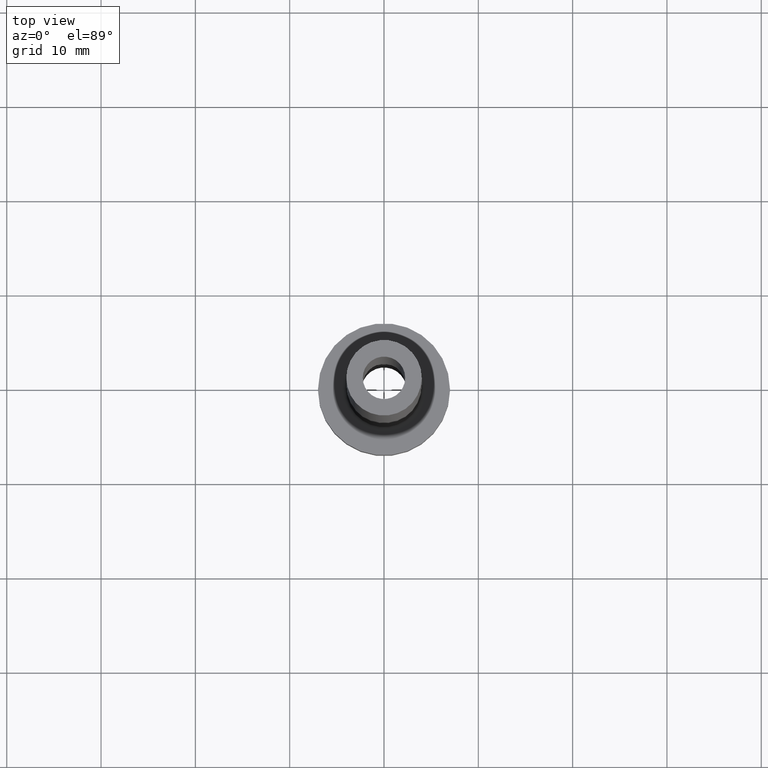
[diagram: clean part render]
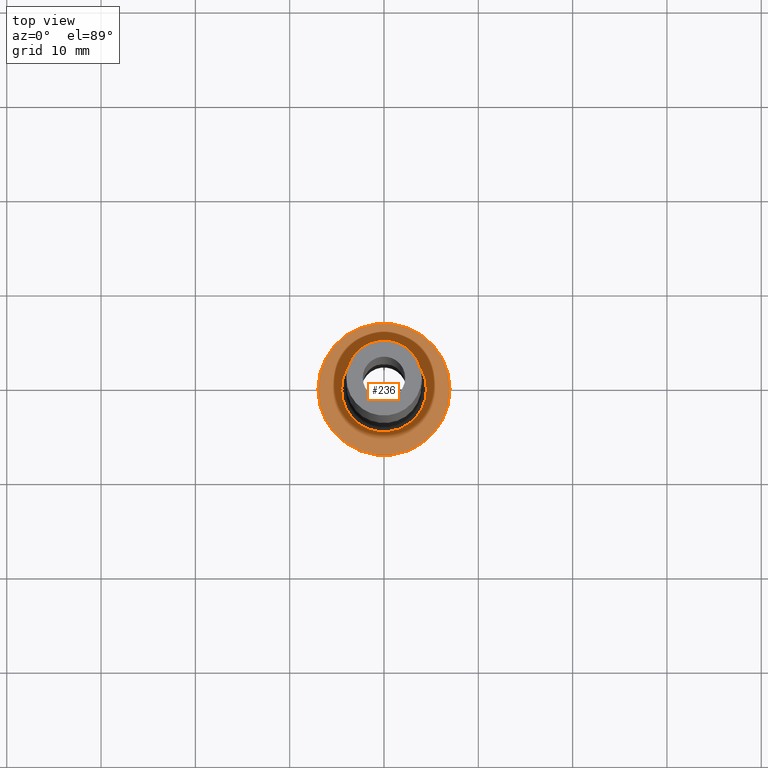
[diagram: same view with one face highlighted and labeled with its STEP entity id]
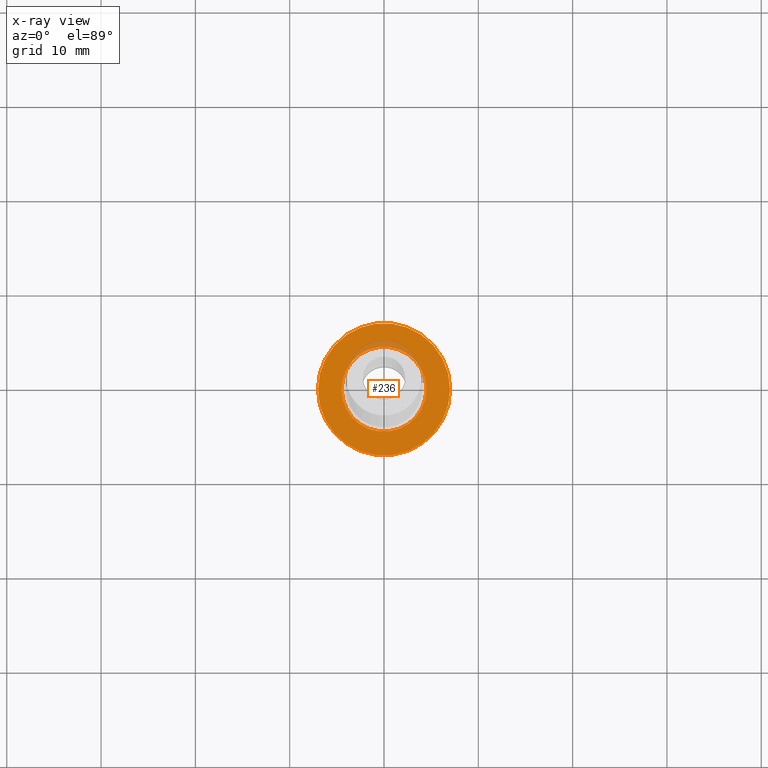
[diagram: x-ray of the same camera — body ghosted, the highlighted face saturated]
A machine part, top view. The second image highlights one B-rep face of the part: STEP entity #236.
The next image is the same camera in x-ray: the body ghosted, the highlighted face saturated — about 5% of this face is hidden behind the body in this view.
In plain terms, the highlighted planar face has unit normal (0, 0, 1).
Its self-contained STEP definition (entity closure, byte-faithful):
#2 = CIRCLE ( 'NONE', #56, 4.500000000000000888 ) ;
#13 = ORIENTED_EDGE ( 'NONE', *, *, #413, .T. ) ;
#17 = PLANE ( 'NONE',  #283 ) ;
#22 = VERTEX_POINT ( 'NONE', #377 ) ;
#29 = DIRECTION ( 'NONE',  ( 0.000000000000000000, 0.000000000000000000, 1.000000000000000000 ) ) ;
#36 = EDGE_LOOP ( 'NONE', ( #316, #13 ) ) ;
#56 = AXIS2_PLACEMENT_3D ( 'NONE', #270, #235, #347 ) ;
#57 = VERTEX_POINT ( 'NONE', #424 ) ;
#59 = CARTESIAN_POINT ( 'NONE',  ( 0.000000000000000000, 0.000000000000000000, 5.000000000000000000 ) ) ;
#85 = VERTEX_POINT ( 'NONE', #392 ) ;
#92 = CARTESIAN_POINT ( 'NONE',  ( 7.000000000000000000, 8.572527594031473190E-16, 5.000000000000000000 ) ) ;
#104 = AXIS2_PLACEMENT_3D ( 'NONE', #165, #390, #175 ) ;
#118 = DIRECTION ( 'NONE',  ( 0.000000000000000000, 0.000000000000000000, 1.000000000000000000 ) ) ;
#130 = AXIS2_PLACEMENT_3D ( 'NONE', #59, #133, #200 ) ;
#133 = DIRECTION ( 'NONE',  ( 0.000000000000000000, 0.000000000000000000, 1.000000000000000000 ) ) ;
#147 = CIRCLE ( 'NONE', #130, 7.000000000000000000 ) ;
#159 = ORIENTED_EDGE ( 'NONE', *, *, #252, .T. ) ;
#165 = CARTESIAN_POINT ( 'NONE',  ( 0.000000000000000000, 0.000000000000000000, 5.000000000000000000 ) ) ;
#175 = DIRECTION ( 'NONE',  ( 1.000000000000000000, 0.000000000000000000, 0.000000000000000000 ) ) ;
#192 = CARTESIAN_POINT ( 'NONE',  ( 0.000000000000000000, 0.000000000000000000, 5.000000000000000000 ) ) ;
#200 = DIRECTION ( 'NONE',  ( 1.000000000000000000, 0.000000000000000000, 0.000000000000000000 ) ) ;
#206 = DIRECTION ( 'NONE',  ( 1.000000000000000000, 0.000000000000000000, 0.000000000000000000 ) ) ;
#211 = DIRECTION ( 'NONE',  ( 1.000000000000000000, 0.000000000000000000, -0.000000000000000000 ) ) ;
#228 = FACE_BOUND ( 'NONE', #238, .T. ) ;
#235 = DIRECTION ( 'NONE',  ( -0.000000000000000000, -0.000000000000000000, -1.000000000000000000 ) ) ;
#236 = ADVANCED_FACE ( 'NONE', ( #228, #370 ), #17, .T. ) ;
#238 = EDGE_LOOP ( 'NONE', ( #314, #159 ) ) ;
#252 = EDGE_CURVE ( 'NONE', #57, #85, #457, .T. ) ;
#255 = AXIS2_PLACEMENT_3D ( 'NONE', #345, #29, #206 ) ;
#270 = CARTESIAN_POINT ( 'NONE',  ( 0.000000000000000000, 0.000000000000000000, 5.000000000000000000 ) ) ;
#274 = EDGE_CURVE ( 'NONE', #85, #57, #2, .T. ) ;
#283 = AXIS2_PLACEMENT_3D ( 'NONE', #192, #118, #211 ) ;
#314 = ORIENTED_EDGE ( 'NONE', *, *, #274, .T. ) ;
#316 = ORIENTED_EDGE ( 'NONE', *, *, #450, .T. ) ;
#345 = CARTESIAN_POINT ( 'NONE',  ( 0.000000000000000000, 0.000000000000000000, 5.000000000000000000 ) ) ;
#347 = DIRECTION ( 'NONE',  ( 1.000000000000000000, 0.000000000000000000, 0.000000000000000000 ) ) ;
#370 = FACE_OUTER_BOUND ( 'NONE', #36, .T. ) ;
#377 = CARTESIAN_POINT ( 'NONE',  ( -7.000000000000000000, 0.000000000000000000, 5.000000000000000000 ) ) ;
#390 = DIRECTION ( 'NONE',  ( -0.000000000000000000, -0.000000000000000000, -1.000000000000000000 ) ) ;
#392 = CARTESIAN_POINT ( 'NONE',  ( 4.500000000000000888, 0.000000000000000000, 5.000000000000002665 ) ) ;
#400 = CIRCLE ( 'NONE', #255, 7.000000000000000000 ) ;
#413 = EDGE_CURVE ( 'NONE', #442, #22, #147, .T. ) ;
#424 = CARTESIAN_POINT ( 'NONE',  ( -4.500000000000000888, 5.510910596163088569E-16, 5.000000000000002665 ) ) ;
#442 = VERTEX_POINT ( 'NONE', #92 ) ;
#450 = EDGE_CURVE ( 'NONE', #22, #442, #400, .T. ) ;
#457 = CIRCLE ( 'NONE', #104, 4.500000000000000888 ) ;